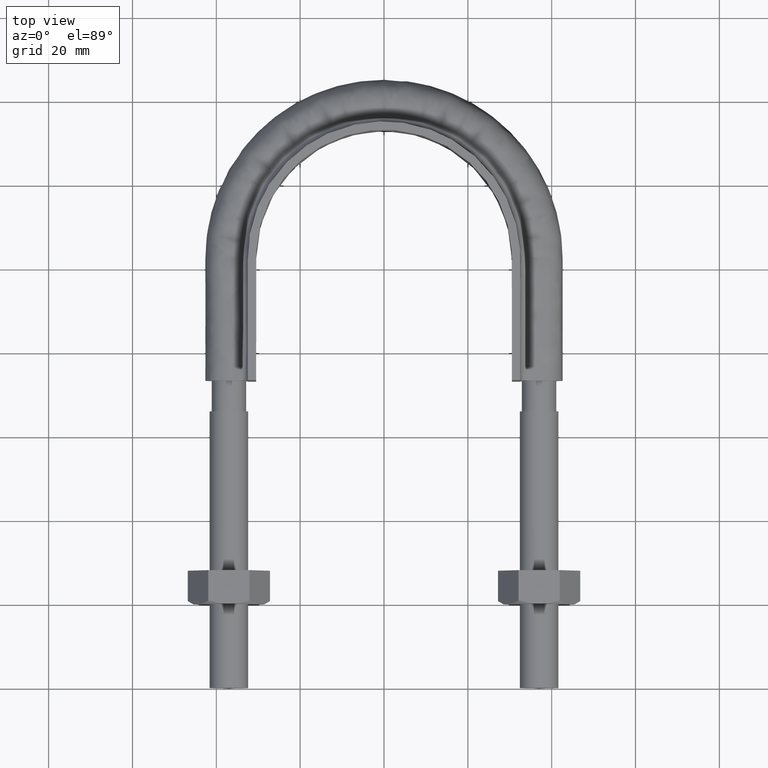
[diagram: clean part render]
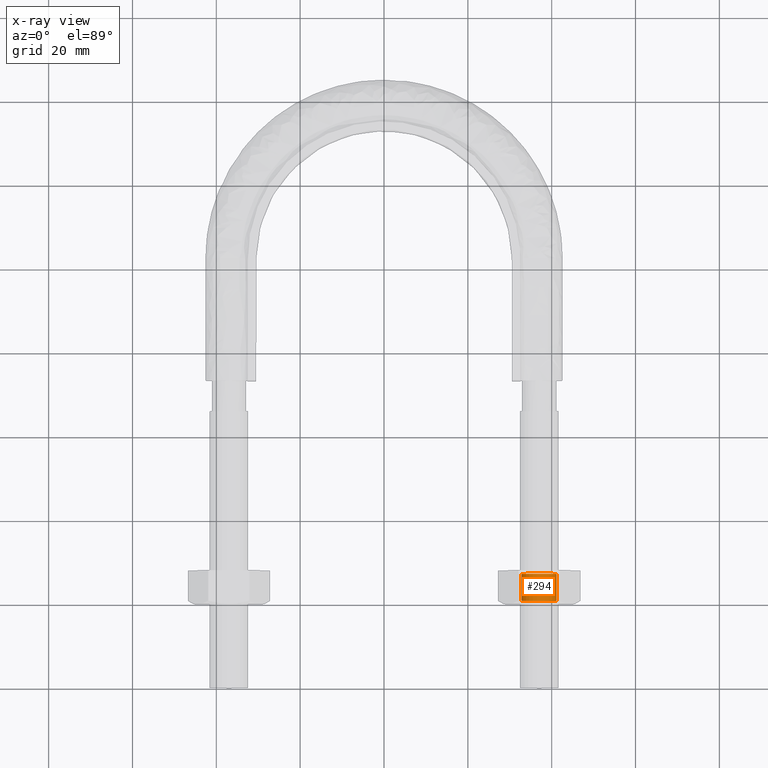
[diagram: x-ray — body ghosted, one internal face saturated and labeled with its STEP entity id]
A machine part, top view, then the same camera in x-ray: the body is ghosted and one INTERNAL B-rep face — a face not visible from any outside direction — is saturated and labeled: STEP entity #294.
In plain terms, the highlighted cylindrical surface (bore or boss wall) has radius 4.188 mm, axis along (-0, -1, 0).
Its self-contained STEP definition (entity closure, byte-faithful):
#294 = ADVANCED_FACE( '', ( #465, #466 ), #467, .F. );
#465 = FACE_OUTER_BOUND( '', #1462, .T. );
#466 = FACE_OUTER_BOUND( '', #1463, .T. );
#467 = CYLINDRICAL_SURFACE( '', #1464, 4.18800000000000 );
#1462 = EDGE_LOOP( '', ( #1998 ) );
#1463 = EDGE_LOOP( '', ( #1999 ) );
#1464 = AXIS2_PLACEMENT_3D( '', #2000, #2001, #2002 );
#1998 = ORIENTED_EDGE( '', *, *, #2126, .T. );
#1999 = ORIENTED_EDGE( '', *, *, #2154, .F. );
#2000 = CARTESIAN_POINT( '', ( 37.0000000000000, 27.9999999999964, -1.11228300875288E-015 ) );
#2001 = DIRECTION( '', ( -2.44921270764475E-016, -1.00000000000000, 6.12303176911192E-017 ) );
#2002 = DIRECTION( '', ( -0.866025403784242, 1.81492883563574E-016, -0.500000000000340 ) );
#2126 = EDGE_CURVE( '', #2362, #2362, #2363, .T. );
#2154 = EDGE_CURVE( '', #2403, #2403, #2404, .F. );
#2362 = VERTEX_POINT( '', #2978 );
#2363 = CIRCLE( '', #2979, 4.18800000000000 );
#2403 = VERTEX_POINT( '', #3056 );
#2404 = CIRCLE( '', #3057, 4.18800000000000 );
#2978 = CARTESIAN_POINT( '', ( 32.8120000000000, 27.1879999999964, -1.06256399078769E-015 ) );
#2979 = AXIS2_PLACEMENT_3D( '', #3244, #3245, #3246 );
#3056 = CARTESIAN_POINT( '', ( 41.1880000000000, 20.8119999999964, -6.72159485189117E-016 ) );
#3057 = AXIS2_PLACEMENT_3D( '', #3289, #3290, #3291 );
#3244 = CARTESIAN_POINT( '', ( 37.0000000000000, 27.1879999999964, -1.06256399078769E-015 ) );
#3245 = DIRECTION( '', ( 2.44921270764475E-016, 1.00000000000000, -6.12303176911192E-017 ) );
#3246 = DIRECTION( '', ( -1.00000000000000, 2.44921270764475E-016, 0.000000000000000 ) );
#3289 = CARTESIAN_POINT( '', ( 37.0000000000000, 20.8119999999964, -6.72159485189117E-016 ) );
#3290 = DIRECTION( '', ( -2.44921270764475E-016, -1.00000000000000, 6.12303176911192E-017 ) );
#3291 = DIRECTION( '', ( 1.00000000000000, -2.44921270764475E-016, 0.000000000000000 ) );